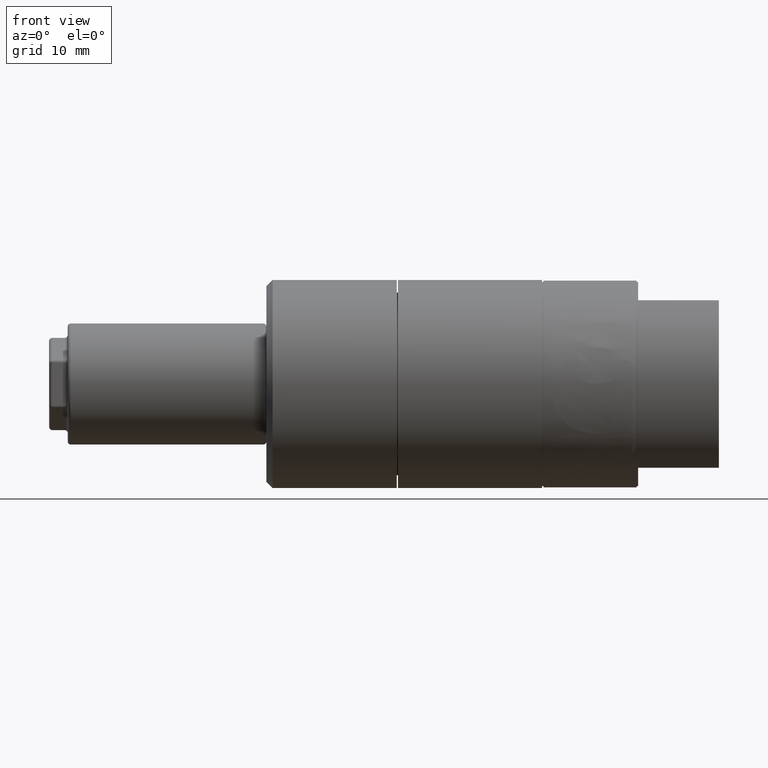
[diagram: clean part render]
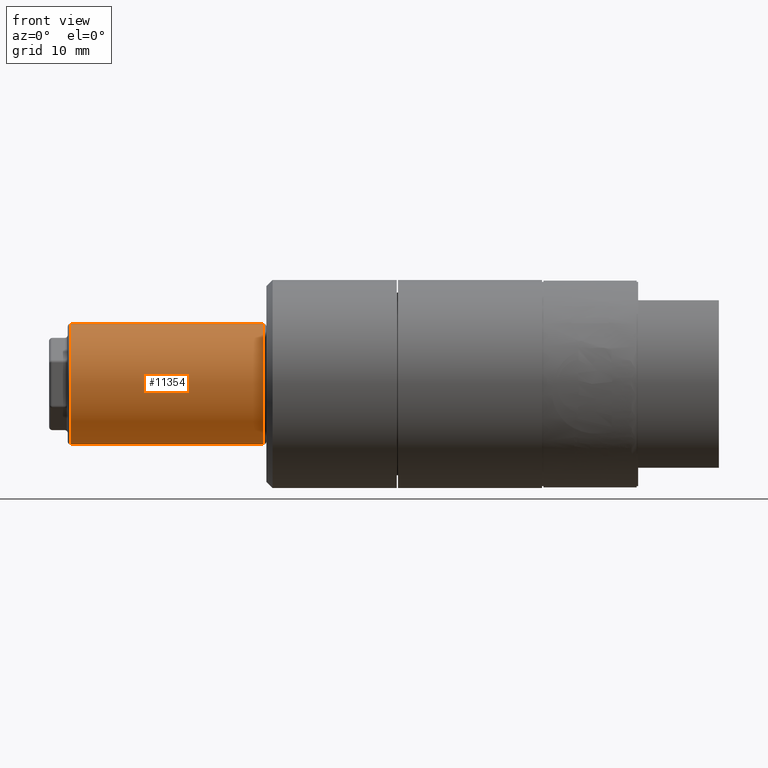
[diagram: same view with one face highlighted and labeled with its STEP entity id]
A machine part, front view. The second image highlights one B-rep face of the part: STEP entity #11354.
In plain terms, the highlighted cylindrical surface (partial cylindrical patch) has radius 9.75 mm, axis along (1, 0, 0).
Its self-contained STEP definition (entity closure, byte-faithful):
#193 = CARTESIAN_POINT ( 'NONE',  ( -90.89999999999999100, -1.512177427547000100E-015, -9.750000000000000000 ) ) ;
#211 = DIRECTION ( 'NONE',  ( 1.000000000000000000, 0.0000000000000000000, 0.0000000000000000000 ) ) ;
#466 = CARTESIAN_POINT ( 'NONE',  ( -104.8999999999999900, 2.706168622523819900E-015, 9.750000000000000000 ) ) ;
#531 = DIRECTION ( 'NONE',  ( 1.000000000000000000, 0.0000000000000000000, 0.0000000000000000000 ) ) ;
#533 = VERTEX_POINT ( 'NONE', #4247 ) ;
#702 = CARTESIAN_POINT ( 'NONE',  ( -104.8999999999999900, 0.0000000000000000000, 0.0000000000000000000 ) ) ;
#791 = CARTESIAN_POINT ( 'NONE',  ( -104.8999999999999900, 2.706168622523819900E-015, 9.750000000000000000 ) ) ;
#1156 = DIRECTION ( 'NONE',  ( 1.000000000000000000, -0.0000000000000000000, -0.0000000000000000000 ) ) ;
#1562 = CARTESIAN_POINT ( 'NONE',  ( -104.8999999999999900, -1.512177427547000100E-015, -9.750000000000000000 ) ) ;
#1662 = CARTESIAN_POINT ( 'NONE',  ( -88.90000000000000600, -1.512177427547000100E-015, -9.750000000000000000 ) ) ;
#1758 = LINE ( 'NONE', #8141, #16238 ) ;
#1984 = VERTEX_POINT ( 'NONE', #7820 ) ;
#2138 = VECTOR ( 'NONE', #16065, 1000.000000000000000 ) ;
#2286 = EDGE_CURVE ( 'NONE', #533, #2798, #14584, .T. ) ;
#2410 = LINE ( 'NONE', #8574, #3288 ) ;
#2418 = LINE ( 'NONE', #9553, #4417 ) ;
#2508 = CARTESIAN_POINT ( 'NONE',  ( -73.40000000000000600, 0.0000000000000000000, 0.0000000000000000000 ) ) ;
#2626 = FACE_OUTER_BOUND ( 'NONE', #11478, .T. ) ;
#2652 = EDGE_CURVE ( 'NONE', #15893, #4868, #17096, .T. ) ;
#2783 = VECTOR ( 'NONE', #12517, 1000.000000000000000 ) ;
#2798 = VERTEX_POINT ( 'NONE', #18561 ) ;
#2999 = DIRECTION ( 'NONE',  ( 1.000000000000000000, 0.0000000000000000000, 0.0000000000000000000 ) ) ;
#3126 = CARTESIAN_POINT ( 'NONE',  ( -104.4000000000000100, 3.900199251692487600E-015, 9.750000000000000000 ) ) ;
#3288 = VECTOR ( 'NONE', #12964, 1000.000000000000000 ) ;
#3467 = LINE ( 'NONE', #9171, #13019 ) ;
#4148 = VECTOR ( 'NONE', #6517, 1000.000000000000000 ) ;
#4221 = LINE ( 'NONE', #791, #11482 ) ;
#4233 = VECTOR ( 'NONE', #2999, 1000.000000000000000 ) ;
#4247 = CARTESIAN_POINT ( 'NONE',  ( -104.4000000000000100, -2.706168622523817900E-015, -9.750000000000000000 ) ) ;
#4252 = EDGE_CURVE ( 'NONE', #5353, #9417, #6608, .T. ) ;
#4391 = VECTOR ( 'NONE', #11718, 1000.000000000000000 ) ;
#4394 = EDGE_CURVE ( 'NONE', #8218, #16402, #2410, .T. ) ;
#4417 = VECTOR ( 'NONE', #12604, 1000.000000000000000 ) ;
#4542 = DIRECTION ( 'NONE',  ( -1.000000000000000000, -0.0000000000000000000, -0.0000000000000000000 ) ) ;
#4554 = EDGE_CURVE ( 'NONE', #11122, #12068, #13286, .T. ) ;
#4758 = CARTESIAN_POINT ( 'NONE',  ( -96.90000000000000600, 2.706168622523819900E-015, 9.750000000000000000 ) ) ;
#4868 = VERTEX_POINT ( 'NONE', #193 ) ;
#4888 = ORIENTED_EDGE ( 'NONE', *, *, #4252, .F. ) ;
#4917 = VECTOR ( 'NONE', #211, 1000.000000000000000 ) ;
#5287 = ORIENTED_EDGE ( 'NONE', *, *, #8093, .T. ) ;
#5353 = VERTEX_POINT ( 'NONE', #16307 ) ;
#5428 = ORIENTED_EDGE ( 'NONE', *, *, #4554, .T. ) ;
#5683 = EDGE_CURVE ( 'NONE', #15893, #2798, #3467, .T. ) ;
#5783 = CARTESIAN_POINT ( 'NONE',  ( -104.8999999999999900, -2.706168622523817900E-015, -9.750000000000000000 ) ) ;
#6203 = ORIENTED_EDGE ( 'NONE', *, *, #13249, .F. ) ;
#6496 = CARTESIAN_POINT ( 'NONE',  ( -104.4000000000000100, 0.0000000000000000000, 0.0000000000000000000 ) ) ;
#6502 = DIRECTION ( 'NONE',  ( 1.000000000000000000, 0.0000000000000000000, 0.0000000000000000000 ) ) ;
#6517 = DIRECTION ( 'NONE',  ( 1.000000000000000000, 0.0000000000000000000, 0.0000000000000000000 ) ) ;
#6608 = LINE ( 'NONE', #15314, #2783 ) ;
#6670 = EDGE_CURVE ( 'NONE', #9437, #11404, #2418, .T. ) ;
#6789 = ORIENTED_EDGE ( 'NONE', *, *, #6670, .F. ) ;
#6884 = ORIENTED_EDGE ( 'NONE', *, *, #14872, .F. ) ;
#6926 = LINE ( 'NONE', #10418, #4917 ) ;
#7218 = EDGE_CURVE ( 'NONE', #17504, #11122, #9663, .T. ) ;
#7596 = EDGE_CURVE ( 'NONE', #12989, #1984, #6926, .T. ) ;
#7669 = CARTESIAN_POINT ( 'NONE',  ( -96.90000000000000600, -1.512177427547000100E-015, -9.750000000000000000 ) ) ;
#7746 = VECTOR ( 'NONE', #13585, 1000.000000000000000 ) ;
#7820 = CARTESIAN_POINT ( 'NONE',  ( -98.90000000000000600, 2.706168622523819900E-015, 9.750000000000000000 ) ) ;
#7940 = AXIS2_PLACEMENT_3D ( 'NONE', #702, #18218, #18149 ) ;
#8086 = DIRECTION ( 'NONE',  ( 1.000000000000000000, 0.0000000000000000000, 0.0000000000000000000 ) ) ;
#8093 = EDGE_CURVE ( 'NONE', #12989, #533, #14649, .T. ) ;
#8141 = CARTESIAN_POINT ( 'NONE',  ( -104.8999999999999900, -2.706168622523819900E-015, -9.750000000000000000 ) ) ;
#8218 = VERTEX_POINT ( 'NONE', #1662 ) ;
#8243 = LINE ( 'NONE', #1562, #4391 ) ;
#8374 = ORIENTED_EDGE ( 'NONE', *, *, #5683, .F. ) ;
#8574 = CARTESIAN_POINT ( 'NONE',  ( -104.8999999999999900, -2.706168622523817900E-015, -9.750000000000000000 ) ) ;
#8785 = CARTESIAN_POINT ( 'NONE',  ( -73.40000000000000600, -2.706168622523817900E-015, -9.750000000000000000 ) ) ;
#9069 = EDGE_CURVE ( 'NONE', #11404, #5353, #4221, .T. ) ;
#9171 = CARTESIAN_POINT ( 'NONE',  ( -104.8999999999999900, -1.512177427547000100E-015, -9.750000000000000000 ) ) ;
#9356 = ORIENTED_EDGE ( 'NONE', *, *, #4394, .T. ) ;
#9417 = VERTEX_POINT ( 'NONE', #17411 ) ;
#9437 = VERTEX_POINT ( 'NONE', #4758 ) ;
#9553 = CARTESIAN_POINT ( 'NONE',  ( -104.8999999999999900, 3.900199251692487600E-015, 9.750000000000000000 ) ) ;
#9663 = LINE ( 'NONE', #17772, #4233 ) ;
#10418 = CARTESIAN_POINT ( 'NONE',  ( -104.8999999999999900, 3.900199251692487600E-015, 9.750000000000000000 ) ) ;
#10462 = EDGE_CURVE ( 'NONE', #16402, #17504, #1758, .T. ) ;
#10575 = ORIENTED_EDGE ( 'NONE', *, *, #7596, .F. ) ;
#10964 = CARTESIAN_POINT ( 'NONE',  ( -104.8999999999999900, -2.706168622523817900E-015, -9.750000000000000000 ) ) ;
#11103 = DIRECTION ( 'NONE',  ( -1.000000000000000000, 0.0000000000000000000, 0.0000000000000000000 ) ) ;
#11122 = VERTEX_POINT ( 'NONE', #8785 ) ;
#11346 = ORIENTED_EDGE ( 'NONE', *, *, #9069, .F. ) ;
#11354 = ADVANCED_FACE ( 'NONE', ( #2626 ), #14185, .T. ) ;
#11374 = CARTESIAN_POINT ( 'NONE',  ( -82.90000000000000600, -2.706168622523819900E-015, -9.750000000000000000 ) ) ;
#11404 = VERTEX_POINT ( 'NONE', #13785 ) ;
#11478 = EDGE_LOOP ( 'NONE', ( #10575, #5287, #16871, #8374, #12293, #6203, #9356, #18020, #14307, #5428, #6884, #11847, #4888, #11346, #6789, #16178 ) ) ;
#11482 = VECTOR ( 'NONE', #6502, 1000.000000000000000 ) ;
#11718 = DIRECTION ( 'NONE',  ( -1.000000000000000000, -0.0000000000000000000, -0.0000000000000000000 ) ) ;
#11847 = ORIENTED_EDGE ( 'NONE', *, *, #14413, .T. ) ;
#12068 = VERTEX_POINT ( 'NONE', #15796 ) ;
#12195 = EDGE_CURVE ( 'NONE', #1984, #9437, #18472, .T. ) ;
#12293 = ORIENTED_EDGE ( 'NONE', *, *, #2652, .T. ) ;
#12517 = DIRECTION ( 'NONE',  ( 1.000000000000000000, 0.0000000000000000000, 0.0000000000000000000 ) ) ;
#12604 = DIRECTION ( 'NONE',  ( 1.000000000000000000, 0.0000000000000000000, 0.0000000000000000000 ) ) ;
#12751 = DIRECTION ( 'NONE',  ( 0.0000000000000000000, 2.775557561562890400E-016, 1.000000000000000000 ) ) ;
#12787 = CARTESIAN_POINT ( 'NONE',  ( -80.90000000000000600, 2.706168622523819900E-015, 9.750000000000000000 ) ) ;
#12964 = DIRECTION ( 'NONE',  ( 1.000000000000000000, 0.0000000000000000000, 0.0000000000000000000 ) ) ;
#12989 = VERTEX_POINT ( 'NONE', #3126 ) ;
#13019 = VECTOR ( 'NONE', #17796, 1000.000000000000000 ) ;
#13022 = AXIS2_PLACEMENT_3D ( 'NONE', #2508, #11103, #12751 ) ;
#13202 = LINE ( 'NONE', #17690, #7746 ) ;
#13249 = EDGE_CURVE ( 'NONE', #8218, #4868, #8243, .T. ) ;
#13286 = CIRCLE ( 'NONE', #13022, 9.750000000000000000 ) ;
#13585 = DIRECTION ( 'NONE',  ( 1.000000000000000000, 0.0000000000000000000, 0.0000000000000000000 ) ) ;
#13785 = CARTESIAN_POINT ( 'NONE',  ( -90.89999999999999100, 2.706168622523819900E-015, 9.750000000000000000 ) ) ;
#13866 = DIRECTION ( 'NONE',  ( 0.0000000000000000000, 2.775557561562890400E-016, 1.000000000000000000 ) ) ;
#14185 = CYLINDRICAL_SURFACE ( 'NONE', #7940, 9.750000000000000000 ) ;
#14307 = ORIENTED_EDGE ( 'NONE', *, *, #7218, .T. ) ;
#14413 = EDGE_CURVE ( 'NONE', #15429, #9417, #14573, .T. ) ;
#14573 = LINE ( 'NONE', #16347, #15723 ) ;
#14584 = LINE ( 'NONE', #5783, #2138 ) ;
#14649 = CIRCLE ( 'NONE', #18361, 9.750000000000000000 ) ;
#14847 = VECTOR ( 'NONE', #531, 1000.000000000000000 ) ;
#14872 = EDGE_CURVE ( 'NONE', #15429, #12068, #13202, .T. ) ;
#15034 = CARTESIAN_POINT ( 'NONE',  ( -80.90000000000000600, -2.706168622523819900E-015, -9.750000000000000000 ) ) ;
#15314 = CARTESIAN_POINT ( 'NONE',  ( -104.8999999999999900, 3.900199251692487600E-015, 9.750000000000000000 ) ) ;
#15429 = VERTEX_POINT ( 'NONE', #12787 ) ;
#15723 = VECTOR ( 'NONE', #4542, 1000.000000000000000 ) ;
#15796 = CARTESIAN_POINT ( 'NONE',  ( -73.40000000000000600, 3.900199251692487600E-015, 9.750000000000000000 ) ) ;
#15893 = VERTEX_POINT ( 'NONE', #7669 ) ;
#16065 = DIRECTION ( 'NONE',  ( 1.000000000000000000, 0.0000000000000000000, 0.0000000000000000000 ) ) ;
#16178 = ORIENTED_EDGE ( 'NONE', *, *, #12195, .F. ) ;
#16238 = VECTOR ( 'NONE', #8086, 1000.000000000000000 ) ;
#16307 = CARTESIAN_POINT ( 'NONE',  ( -88.90000000000000600, 2.706168622523819900E-015, 9.750000000000000000 ) ) ;
#16347 = CARTESIAN_POINT ( 'NONE',  ( -104.8999999999999900, 2.706168622523819900E-015, 9.750000000000000000 ) ) ;
#16402 = VERTEX_POINT ( 'NONE', #11374 ) ;
#16871 = ORIENTED_EDGE ( 'NONE', *, *, #2286, .T. ) ;
#17096 = LINE ( 'NONE', #10964, #4148 ) ;
#17411 = CARTESIAN_POINT ( 'NONE',  ( -82.90000000000000600, 2.706168622523819900E-015, 9.750000000000000000 ) ) ;
#17504 = VERTEX_POINT ( 'NONE', #15034 ) ;
#17690 = CARTESIAN_POINT ( 'NONE',  ( -104.8999999999999900, 3.900199251692487600E-015, 9.750000000000000000 ) ) ;
#17772 = CARTESIAN_POINT ( 'NONE',  ( -104.8999999999999900, -2.706168622523817900E-015, -9.750000000000000000 ) ) ;
#17796 = DIRECTION ( 'NONE',  ( -1.000000000000000000, -0.0000000000000000000, -0.0000000000000000000 ) ) ;
#18020 = ORIENTED_EDGE ( 'NONE', *, *, #10462, .T. ) ;
#18149 = DIRECTION ( 'NONE',  ( 0.0000000000000000000, -2.775557561562890400E-016, -1.000000000000000000 ) ) ;
#18218 = DIRECTION ( 'NONE',  ( 1.000000000000000000, 0.0000000000000000000, 0.0000000000000000000 ) ) ;
#18361 = AXIS2_PLACEMENT_3D ( 'NONE', #6496, #1156, #13866 ) ;
#18472 = LINE ( 'NONE', #466, #14847 ) ;
#18561 = CARTESIAN_POINT ( 'NONE',  ( -98.90000000000000600, -1.512177427547000100E-015, -9.750000000000000000 ) ) ;